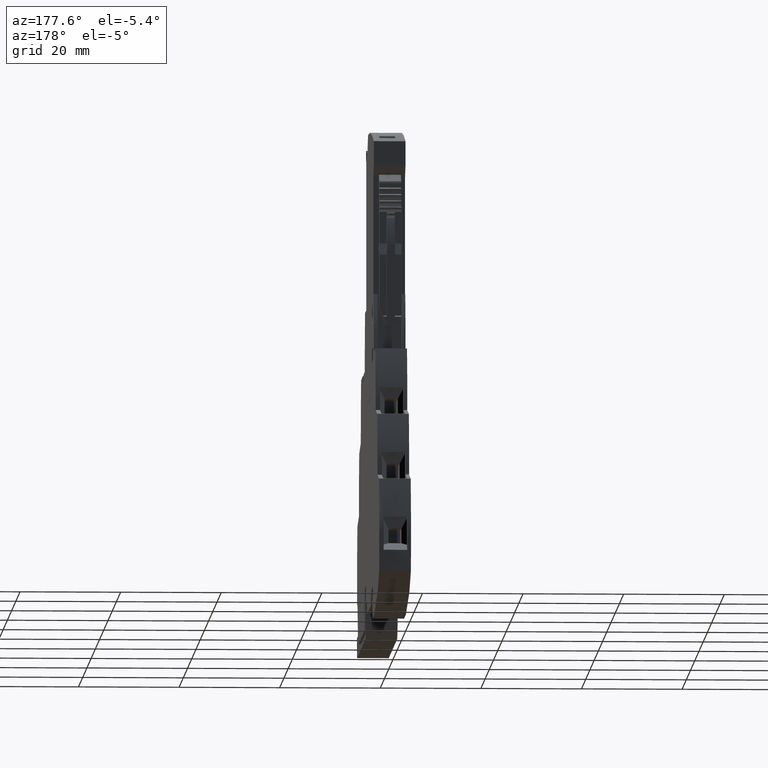
[diagram: clean part render]
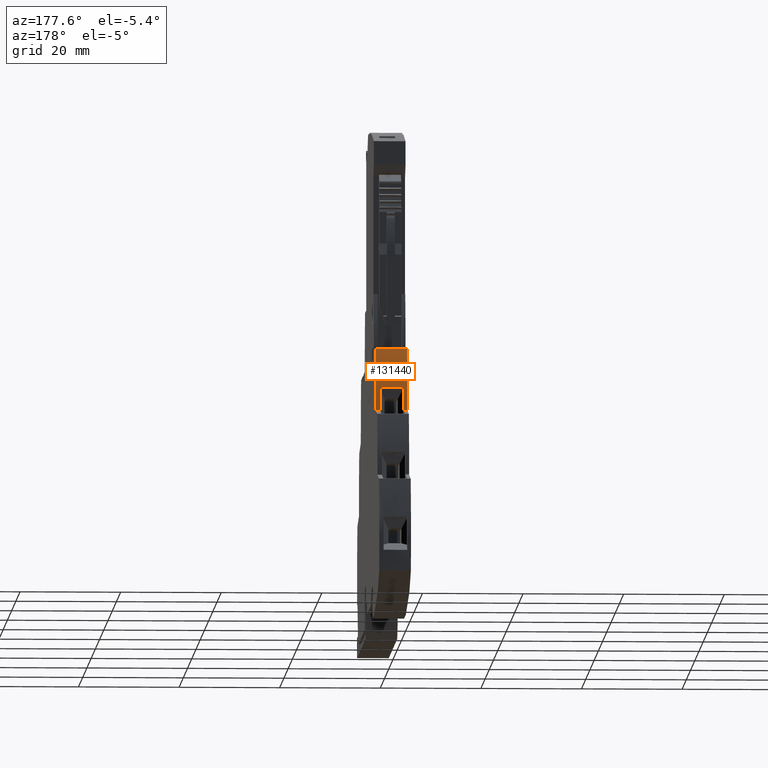
[diagram: same view with one face highlighted and labeled with its STEP entity id]
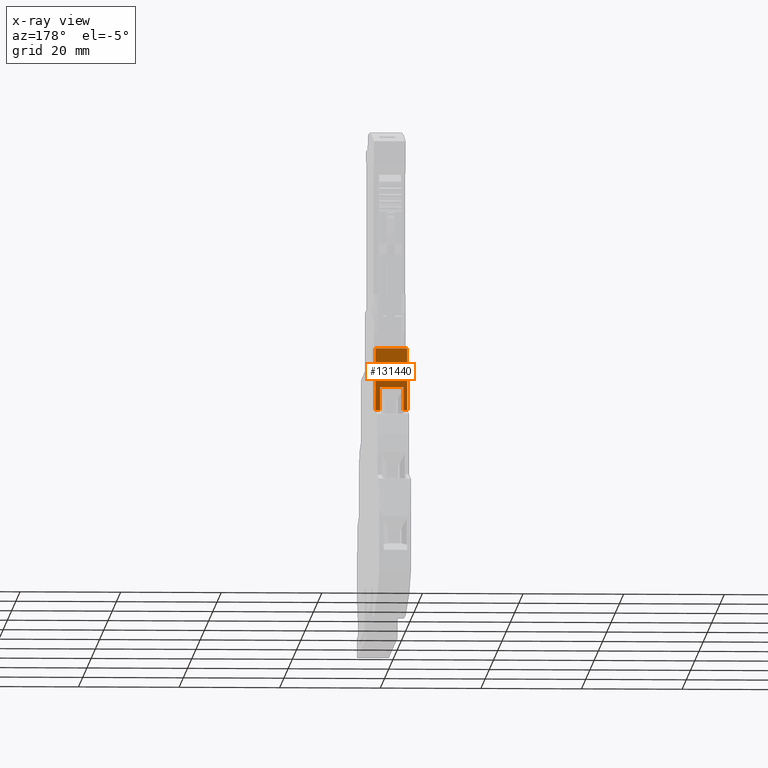
[diagram: x-ray of the same camera — body ghosted, the highlighted face saturated]
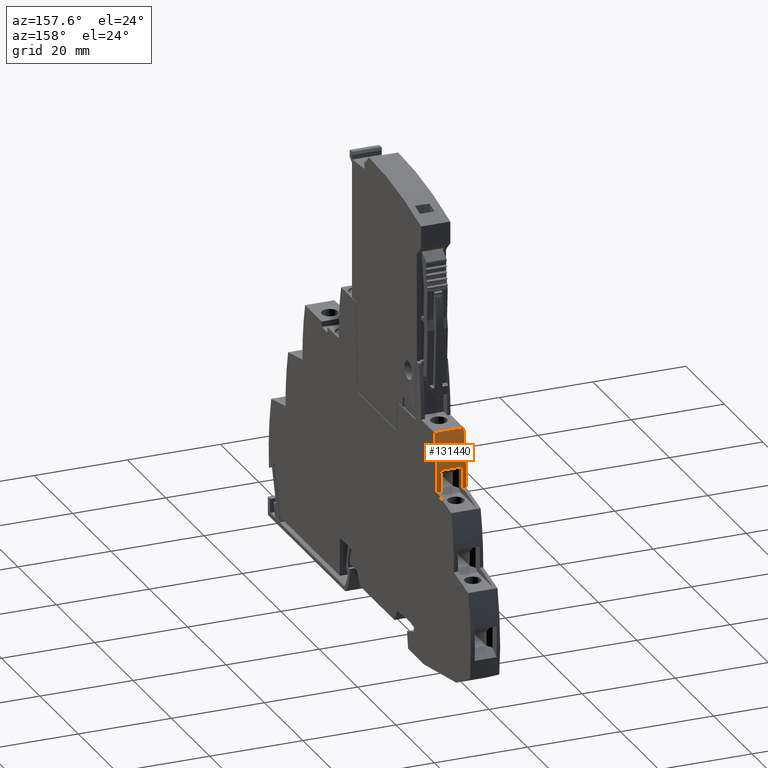
[diagram: same view with one face highlighted and labeled with its STEP entity id]
A machine part, auxiliary view. The second image highlights one B-rep face of the part: STEP entity #131440.
The next image is the same camera in x-ray: the body ghosted, the highlighted face saturated — about 0% of this face is hidden behind the body in this view.
A second angle (auxiliary view) of the same face is appended — the face is thin or edge-on in the first view.
In plain terms, the highlighted cylindrical surface (partial cylindrical patch) has radius 50 mm, axis along (1, -0, -0).
Its self-contained STEP definition (entity closure, byte-faithful):
#4790=CARTESIAN_POINT('',(12.0920366264937,34.1702546758623,
1.02045460829251E-7));
#4800=VERTEX_POINT('',#4790);
#4830=CARTESIAN_POINT('',(-37.9036280711308,34.8286705343468,
3.84342566661644E-8));
#4840=DIRECTION('',(1.27233440234888E-9,1.65436122510606E-24,-1.));
#4850=DIRECTION('',(0.973730485764539,0.227703625559092,
1.23891079565411E-9));
#4860=AXIS2_PLACEMENT_3D('',#4830,#4840,#4850);
#4870=CIRCLE('',#4860,50.);
#4880=CARTESIAN_POINT('',(10.6909786524791,46.5999999995214,
1.00262846569227E-7));
#4890=VERTEX_POINT('',#4880);
#4900=EDGE_CURVE('',#4890,#4800,#4870,.T.);
#11390=CARTESIAN_POINT('',(10.6909786436205,46.6000000030012,
6.3000000582273));
#11400=VERTEX_POINT('',#11390);
#11430=CARTESIAN_POINT('',(-37.9036280791465,34.8286705343468,
6.29999999639871));
#11440=DIRECTION('',(-1.27233440546428E-9,2.54941281471263E-20,1.));
#11450=DIRECTION('',(0.999966514571986,-0.00818350381888294,
1.27229180080235E-9));
#11460=AXIS2_PLACEMENT_3D('',#11430,#11440,#11450);
#11470=CIRCLE('',#11460,50.);
#11480=CARTESIAN_POINT('',(12.092036618478,34.1702546758623,
6.30000006000991));
#11490=VERTEX_POINT('',#11480);
#11500=EDGE_CURVE('',#11490,#11400,#11470,.T.);
#130090=CARTESIAN_POINT('',(10.6909786444634,46.5999999995214,
6.3000000582273));
#130100=DIRECTION('',(-1.27233440234888E-9,-1.65436122510606E-24,1.));
#130110=VECTOR('',#130100,1.);
#130120=LINE('',#130090,#130110);
#130130=EDGE_CURVE('',#4890,#11400,#130120,.T.);
#130940=CARTESIAN_POINT('',(-37.9036280791465,34.8286705343468,
6.29999999639871));
#130950=DIRECTION('',(-1.27233440234888E-9,-1.65436122510606E-24,1.));
#130960=DIRECTION('',(0.207911690818067,-0.97814760073374,
2.64533196878349E-10));
#130970=AXIS2_PLACEMENT_3D('',#130940,#130950,#130960);
#130980=CYLINDRICAL_SURFACE('',#130970,50.);
#130990=CARTESIAN_POINT('',(-37.9036280720596,34.8286705343468,
0.730000015145096));
#131000=DIRECTION('',(-1.27233440324391E-9,7.32309943317871E-21,1.));
#131010=DIRECTION('',(0.999966514571986,-0.0081835038188845,
1.2722917985819E-9));
#131020=AXIS2_PLACEMENT_3D('',#130990,#131000,#131010);
#131030=CIRCLE('',#131020,50.);
#131040=CARTESIAN_POINT('',(12.0920366255649,34.1702546758623,
0.73000013956649));
#131050=VERTEX_POINT('',#131040);
#131060=CARTESIAN_POINT('',(11.9413966566745,38.7623087729096,
0.730000139214735));
#131070=VERTEX_POINT('',#131060);
#131080=EDGE_CURVE('',#131050,#131070,#131030,.T.);
#131090=ORIENTED_EDGE('',*,*,#131080,.F.);
#131100=CARTESIAN_POINT('',(11.9413966506948,38.762308772907,
5.43000056639316));
#131110=DIRECTION('',(1.27233397362561E-9,0.,-1.));
#131120=VECTOR('',#131110,1.);
#131130=LINE('',#131100,#131120);
#131140=CARTESIAN_POINT('',(11.941396650793,38.7623087716623,
5.43000056639316));
#131150=VERTEX_POINT('',#131140);
#131160=EDGE_CURVE('',#131150,#131070,#131130,.T.);
#131170=ORIENTED_EDGE('',*,*,#131160,.T.);
#131180=CARTESIAN_POINT('',(-37.9036280780396,34.8286705343468,
5.43000050297362));
#131190=DIRECTION('',(1.27233440421016E-9,1.46888613526847E-19,-1.));
#131200=DIRECTION('',(0.996900494578616,0.0786727647214164,
1.26839079683805E-9));
#131210=AXIS2_PLACEMENT_3D('',#131180,#131190,#131200);
#131220=CIRCLE('',#131210,50.);
#131230=CARTESIAN_POINT('',(12.0920366195849,34.1702546758623,
5.43000056658482));
#131240=VERTEX_POINT('',#131230);
#131250=EDGE_CURVE('',#131150,#131240,#131220,.T.);
#131260=ORIENTED_EDGE('',*,*,#131250,.F.);
#131270=CARTESIAN_POINT('',(12.092036618478,34.1702546758623,
6.30000006000991));
#131280=DIRECTION('',(-1.27233440234888E-9,-1.65436122510606E-24,1.));
#131290=VECTOR('',#131280,1.);
#131300=LINE('',#131270,#131290);
#131310=EDGE_CURVE('',#131240,#11490,#131300,.T.);
#131320=ORIENTED_EDGE('',*,*,#131310,.F.);
#131330=ORIENTED_EDGE('',*,*,#11500,.F.);
#131340=ORIENTED_EDGE('',*,*,#130130,.T.);
#131350=ORIENTED_EDGE('',*,*,#4900,.F.);
#131360=CARTESIAN_POINT('',(12.092036618478,34.1702546758623,
6.30000006000991));
#131370=DIRECTION('',(-1.27233440234888E-9,-1.65436122510606E-24,1.));
#131380=VECTOR('',#131370,1.);
#131390=LINE('',#131360,#131380);
#131400=EDGE_CURVE('',#4800,#131050,#131390,.T.);
#131410=ORIENTED_EDGE('',*,*,#131400,.F.);
#131420=EDGE_LOOP('',(#131410,#131350,#131340,#131330,#131320,#131260,
#131170,#131090));
#131430=FACE_OUTER_BOUND('',#131420,.T.);
#131440=ADVANCED_FACE('',(#131430),#130980,.T.);